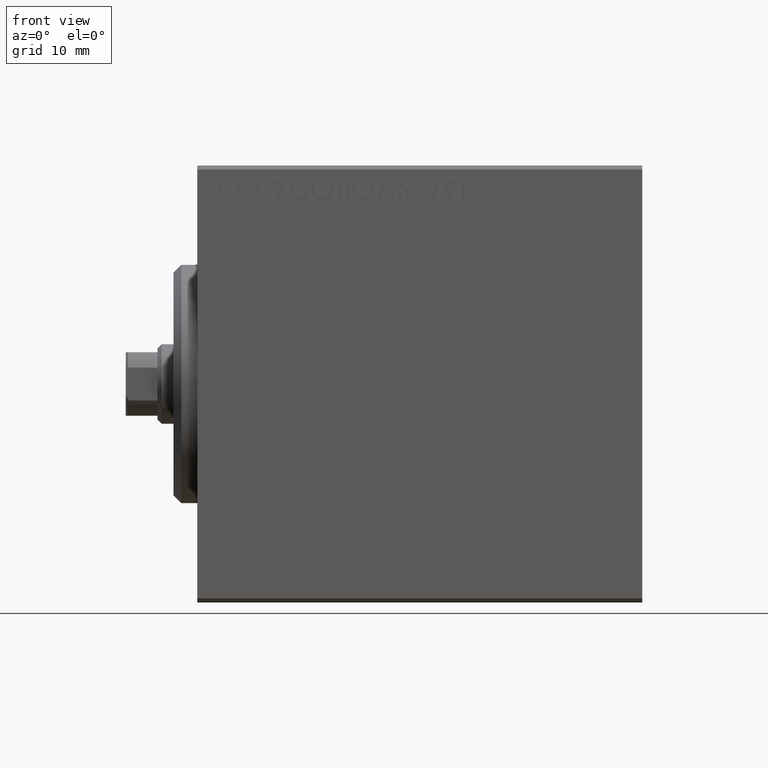
[diagram: clean part render]
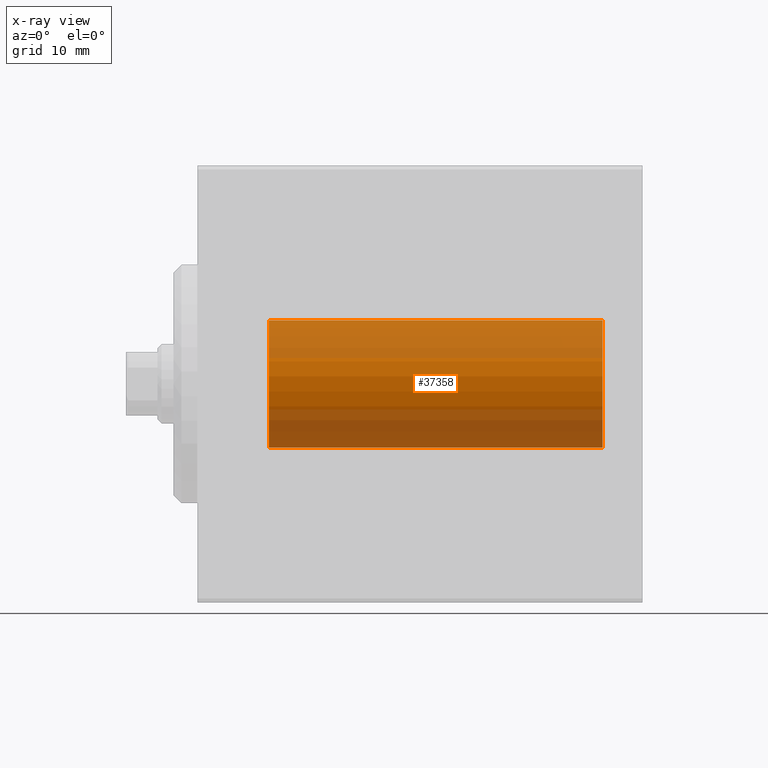
[diagram: x-ray — body ghosted, one internal face saturated and labeled with its STEP entity id]
A machine part, front view, then the same camera in x-ray: the body is ghosted and one INTERNAL B-rep face — a face not visible from any outside direction — is saturated and labeled: STEP entity #37358.
In plain terms, the highlighted cylindrical surface (partial cylindrical patch) has radius 8 mm, axis along (-1, -0, -0).
Its self-contained STEP definition (entity closure, byte-faithful):
#26 = DIRECTION ( 'NONE',  ( 0.000000000000000000, 0.000000000000000000, 1.000000000000000000 ) ) ;
#1649 = DIRECTION ( 'NONE',  ( -1.000000000000000000, -0.000000000000000000, -0.000000000000000000 ) ) ;
#2383 = CIRCLE ( 'NONE', #8094, 7.999999999999998224 ) ;
#2556 = ORIENTED_EDGE ( 'NONE', *, *, #23096, .F. ) ;
#4074 = DIRECTION ( 'NONE',  ( 0.000000000000000000, 0.000000000000000000, 1.000000000000000000 ) ) ;
#5895 = AXIS2_PLACEMENT_3D ( 'NONE', #20787, #27509, #26 ) ;
#6804 = CARTESIAN_POINT ( 'NONE',  ( 51.00000000000000711, 0.000000000000000000, 0.000000000000000000 ) ) ;
#8094 = AXIS2_PLACEMENT_3D ( 'NONE', #6804, #27133, #20427 ) ;
#10790 = VECTOR ( 'NONE', #31310, 1000.000000000000000 ) ;
#12610 = EDGE_CURVE ( 'NONE', #13155, #27344, #24162, .T. ) ;
#13155 = VERTEX_POINT ( 'NONE', #26933 ) ;
#16553 = VERTEX_POINT ( 'NONE', #33644 ) ;
#18047 = ORIENTED_EDGE ( 'NONE', *, *, #22855, .F. ) ;
#20265 = VECTOR ( 'NONE', #1649, 1000.000000000000000 ) ;
#20427 = DIRECTION ( 'NONE',  ( 0.000000000000000000, 0.000000000000000000, 1.000000000000000000 ) ) ;
#20787 = CARTESIAN_POINT ( 'NONE',  ( 51.00000000000000711, 0.000000000000000000, 0.000000000000000000 ) ) ;
#22189 = EDGE_CURVE ( 'NONE', #27344, #16553, #26645, .T. ) ;
#22414 = LINE ( 'NONE', #36031, #20265 ) ;
#22855 = EDGE_CURVE ( 'NONE', #13155, #40040, #2383, .T. ) ;
#23096 = EDGE_CURVE ( 'NONE', #40040, #16553, #22414, .T. ) ;
#23697 = CYLINDRICAL_SURFACE ( 'NONE', #5895, 7.999999999999998224 ) ;
#24162 = LINE ( 'NONE', #37778, #10790 ) ;
#26645 = CIRCLE ( 'NONE', #31631, 7.999999999999998224 ) ;
#26933 = CARTESIAN_POINT ( 'NONE',  ( 51.00000000000000711, 9.797174393178823685E-16, -7.999999999999998224 ) ) ;
#27133 = DIRECTION ( 'NONE',  ( -1.000000000000000000, 0.000000000000000000, 0.000000000000000000 ) ) ;
#27280 = FACE_OUTER_BOUND ( 'NONE', #36378, .T. ) ;
#27344 = VERTEX_POINT ( 'NONE', #33534 ) ;
#27425 = CARTESIAN_POINT ( 'NONE',  ( 51.00000000000000711, 0.000000000000000000, 7.999999999999998224 ) ) ;
#27509 = DIRECTION ( 'NONE',  ( -1.000000000000000000, -0.000000000000000000, -0.000000000000000000 ) ) ;
#27760 = CARTESIAN_POINT ( 'NONE',  ( 9.000000000000001776, 0.000000000000000000, 0.000000000000000000 ) ) ;
#31310 = DIRECTION ( 'NONE',  ( -1.000000000000000000, -0.000000000000000000, -0.000000000000000000 ) ) ;
#31631 = AXIS2_PLACEMENT_3D ( 'NONE', #27760, #38015, #4074 ) ;
#33534 = CARTESIAN_POINT ( 'NONE',  ( 9.000000000000001776, 9.797174393178823685E-16, -7.999999999999998224 ) ) ;
#33644 = CARTESIAN_POINT ( 'NONE',  ( 9.000000000000001776, 0.000000000000000000, 7.999999999999998224 ) ) ;
#33906 = ORIENTED_EDGE ( 'NONE', *, *, #22189, .T. ) ;
#36031 = CARTESIAN_POINT ( 'NONE',  ( 51.00000000000000711, 0.000000000000000000, 7.999999999999998224 ) ) ;
#36308 = ORIENTED_EDGE ( 'NONE', *, *, #12610, .T. ) ;
#36378 = EDGE_LOOP ( 'NONE', ( #18047, #36308, #33906, #2556 ) ) ;
#37358 = ADVANCED_FACE ( 'NONE', ( #27280 ), #23697, .F. ) ;
#37778 = CARTESIAN_POINT ( 'NONE',  ( 51.00000000000000711, 9.797174393178823685E-16, -7.999999999999998224 ) ) ;
#38015 = DIRECTION ( 'NONE',  ( -1.000000000000000000, 0.000000000000000000, 0.000000000000000000 ) ) ;
#40040 = VERTEX_POINT ( 'NONE', #27425 ) ;